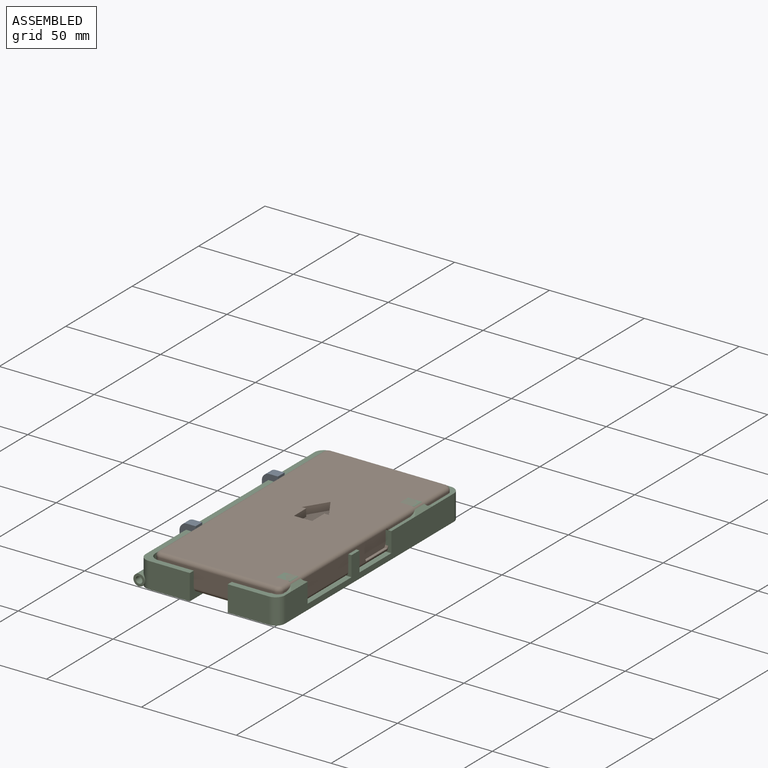
[diagram: assembled view]
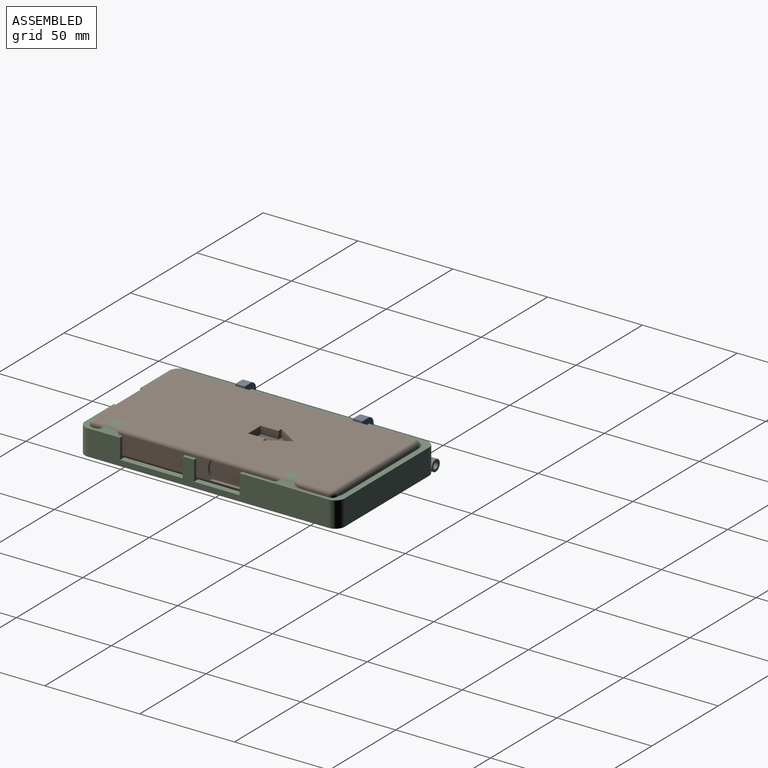
[diagram: assembled view, second angle]
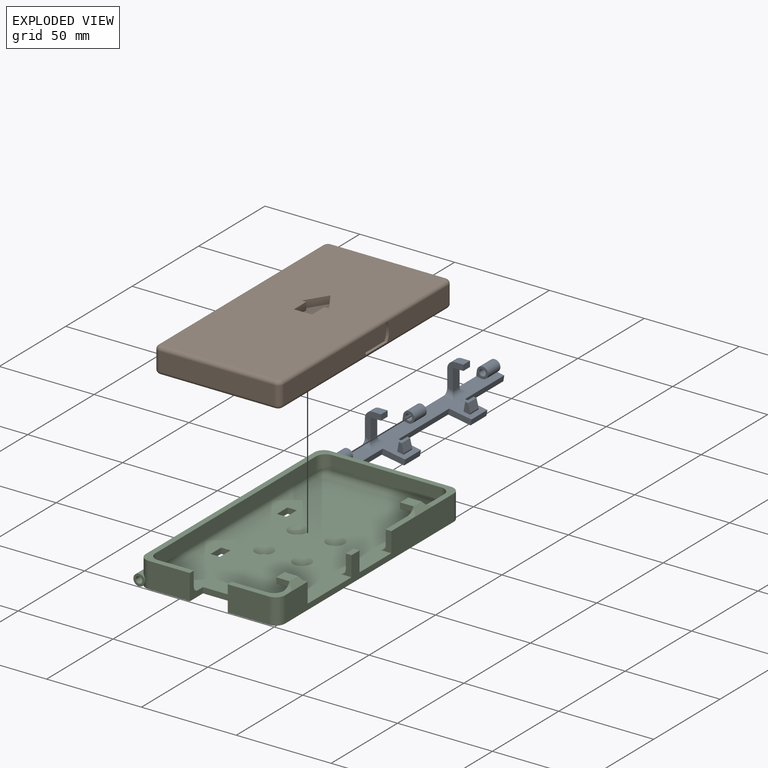
[diagram: exploded view]
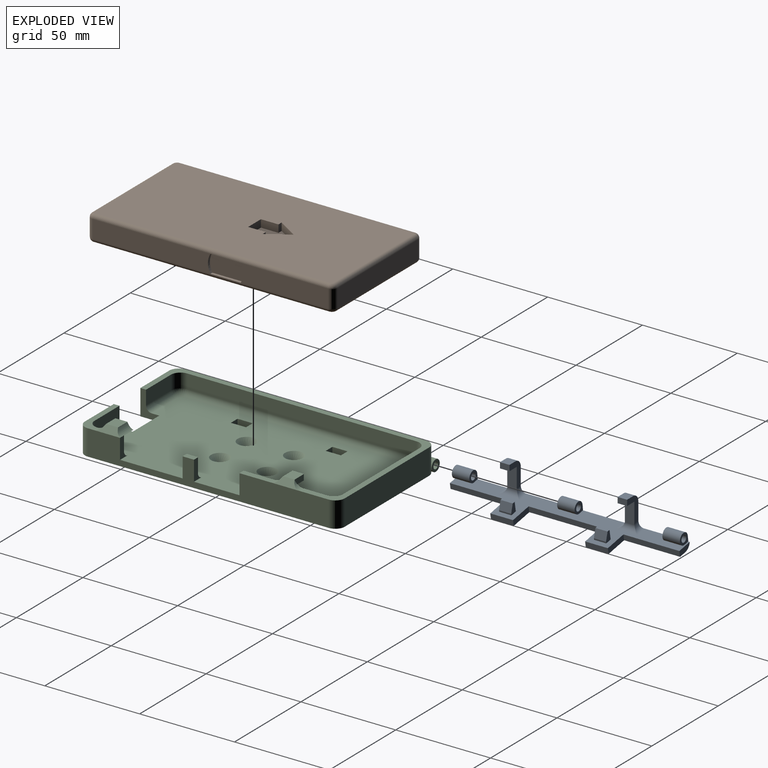
[diagram: exploded view, second angle]
ASSEMBLY  parts=3 mates=2
PART A: 62 faces, bbox 21.9x121x20.4 mm
  f0: plane 121x19.8mm, normal (0,0,1), area 998.5mm2, adj f1,f3,f4,f5,f6,f7,f8,f9
  f1: plane 5x3.4mm, normal (0,-1,0), area 13mm2, adj f0,f2,f50,f52,f53
  f2: plane 6.4x1.5mm, normal (0,0,1), area 9.6mm2, adj f1,f51,f52,f53
  f3: plane 7.9x3mm, normal (0,1,0), area 20.7mm2, adj f0,f4,f14,f29
  f4: plane 29.5x3mm, normal (1,0,0), area 88.5mm2, adj f0,f3,f5,f14
  f5: plane 11.9x3mm, normal (0,1,0), area 35.7mm2, adj f0,f4,f6,f14
  f6: plane 12x3mm, normal (1,0,0), area 36mm2, adj f0,f5,f7,f14
  f7: plane 11.9x3mm, normal (0,-1,0), area 35.7mm2, adj f0,f6,f8,f14
  f8: plane 38x3mm, normal (1,0,0), area 114mm2, adj f0,f7,f9,f14
  f9: plane 11.9x3mm, normal (0,1,0), area 35.7mm2, adj f0,f8,f10,f14
  f10: plane 12x3mm, normal (1,0,0), area 36mm2, adj f0,f9,f11,f14
  f11: plane 11.9x3mm, normal (0,-1,0), area 35.7mm2, adj f0,f10,f12,f14
  f12: plane 29.5x3mm, normal (1,0,0), area 88.5mm2, adj f0,f11,f13,f14
  f13: plane 9x8.1mm, normal (0,-1,0), area 41.1mm2, adj f0,f12,f14,f15,f16,f17,f29
  f14: plane 121x15.93mm, normal (0,0,-1), area 773.1mm2, adj f3,f4,f5,f6,f7,f8,f9,f10
  f15: cylinder r=3mm len=9.2mm, axis (0,-1,0), area 133.2mm2, adj f0,f13,f16,f18
  f16: plane 9.2x1.79mm, normal (-1,0,-0.03), area 16.5mm2, adj f13,f15,f18,f29
  f17: cylinder r=1.75mm len=9.2mm, axis (0,-1,0), area 101.2mm2, adj f13,f18
  f18: plane 6x6mm, normal (0,1,0), area 20.4mm2, adj f0,f15,f16,f17,f29
  f19: cylinder r=3mm len=9.2mm, axis (0,-1,0), area 133.2mm2, adj f0,f20,f22,f23
  f20: plane 9.2x1.79mm, normal (-1,0,-0.03), area 16.5mm2, adj f19,f22,f23,f29
  f21: cylinder r=1.75mm len=9.2mm, axis (0,-1,0), area 101.2mm2, adj f22,f23
  f22: plane 6x6mm, normal (0,1,0), area 20.4mm2, adj f0,f19,f20,f21,f29
  f23: plane 6x6mm, normal (0,-1,0), area 20.4mm2, adj f0,f19,f20,f21,f29
  f24: cylinder r=3mm len=9.2mm, axis (0,-1,0), area 133.2mm2, adj f0,f25,f27,f28
  f25: plane 9.2x1.79mm, normal (-1,0,-0.03), area 16.5mm2, adj f24,f27,f28,f29
  f26: cylinder r=1.75mm len=9.2mm, axis (0,-1,0), area 101.2mm2, adj f27,f28
  f27: plane 6x6mm, normal (0,1,0), area 20.4mm2, adj f0,f24,f25,f26,f29
  f28: plane 6x6mm, normal (0,-1,0), area 20.4mm2, adj f0,f24,f25,f26,f29
  f29: cylinder r=4mm len=121mm, axis (0,-1,0), area 662.4mm2, adj f0,f3,f13,f14,f16,f18,f20,f22
  f30: plane 5.42x5mm, normal (0.17,0,-0.98), area 27.5mm2, adj f31,f34,f35,f36
  f31: plane 5x2.95mm, normal (0.98,0,0.17), area 15mm2, adj f30,f32,f35,f36
  f32: plane 5x4.43mm, normal (-0.17,0,0.98), area 22.5mm2, adj f31,f35,f36,f61
  f33: plane 11.99x11mm, normal (-0.98,0,-0.17), area 64.8mm2, adj f0,f35,f36,f47,f48,f61
  f34: plane 11.01x5.09mm, normal (0.98,0,0.17), area 55.9mm2, adj f30,f35,f36,f47,f48,f49
  f35: plane 14.4x8.26mm, normal (0,1,0), area 53.2mm2, adj f30,f31,f32,f33,f34,f47,f61
  f36: plane 14.4x8.26mm, normal (0,-1,0), area 53.2mm2, adj f30,f31,f32,f33,f34,f48,f61
  f37: plane 5.42x5mm, normal (0.17,0,-0.98), area 27.5mm2, adj f38,f41,f42,f43
  f38: plane 11.01x5.09mm, normal (0.98,0,0.17), area 55.9mm2, adj f37,f42,f43,f44,f45,f46
  f39: plane 11.99x11mm, normal (-0.98,0,-0.17), area 64.8mm2, adj f0,f42,f43,f44,f45,f60
  f40: plane 5x4.43mm, normal (-0.17,0,0.98), area 22.5mm2, adj f41,f42,f43,f60
  f41: plane 5x2.95mm, normal (0.98,0,0.17), area 15mm2, adj f37,f40,f42,f43
  f42: plane 14.4x8.26mm, normal (0,-1,0), area 53.2mm2, adj f37,f38,f39,f40,f41,f44,f60
  f43: plane 14.4x8.26mm, normal (0,1,0), area 53.2mm2, adj f37,f38,f39,f40,f41,f45,f60
  f44: cylinder r=3mm len=6.09mm, axis (1,0,0), area 18.1mm2, adj f0,f38,f39,f42,f46
  f45: cylinder r=3mm len=6.09mm, axis (-1,0,0), area 18.1mm2, adj f0,f38,f39,f43,f46
  f46: cylinder r=3mm len=11mm, axis (0,1,0), area 31.2mm2, adj f0,f38,f44,f45
  f47: cylinder r=3mm len=6.09mm, axis (1,0,0), area 18.1mm2, adj f0,f33,f34,f35,f49
  f48: cylinder r=3mm len=6.09mm, axis (-1,0,0), area 18.1mm2, adj f0,f33,f34,f36,f49
  f49: cylinder r=3mm len=11mm, axis (0,1,0), area 31.2mm2, adj f0,f34,f47,f48
  f50: plane 6.4x0.8mm, normal (1,0,0), area 5.1mm2, adj f0,f1,f51,f53
  f51: plane 5x3.4mm, normal (0,1,0), area 13mm2, adj f0,f2,f50,f52,f53
  f52: plane 6.4x5mm, normal (-1,0,0), area 32mm2, adj f0,f1,f2,f51
  f53: plane 6.4x4.2mm, normal (0.91,0,0.41), area 29.5mm2, adj f1,f2,f50,f51
  f54: plane 6.4x0.8mm, normal (1,0,0), area 5.1mm2, adj f0,f55,f57,f59
  f55: plane 5x3.4mm, normal (0,1,0), area 13mm2, adj f0,f54,f56,f58,f59
  f56: plane 6.4x5mm, normal (-1,0,0), area 32mm2, adj f0,f55,f57,f58
  f57: plane 5x3.4mm, normal (0,-1,0), area 13mm2, adj f0,f54,f56,f58,f59
  f58: plane 6.4x1.5mm, normal (0,0,1), area 9.6mm2, adj f55,f56,f57,f59
  f59: plane 6.4x4.2mm, normal (0.91,0,0.41), area 29.5mm2, adj f54,f55,f57,f58
  f60: cylinder r=4mm len=5mm, axis (0,1,0), area 31.4mm2, adj f39,f40,f42,f43
  f61: cylinder r=4mm len=5mm, axis (0,-1,0), area 31.4mm2, adj f32,f33,f35,f36
PART B: 40 faces, bbox 66.5x130x13.5 mm
  f0: plane 62x9.5mm, normal (1,0,0), area 580.6mm2, adj f10,f14,f19,f28
  f1: plane 126x62.5mm, normal (0,0,1), area 7703.4mm2, adj f11,f12,f13,f14,f15,f18,f21,f24
  f2: plane 126x62.5mm, normal (0,0,-1), area 7874.1mm2, adj f7,f8,f9,f10,f17,f20,f23,f26
  f3: plane 124x9.5mm, normal (-1,0,0), area 1178mm2, adj f7,f11,f22,f25
  f4: plane 60.5x9.5mm, normal (0,-1,0), area 574.8mm2, adj f9,f13,f19,f22
  f5: plane 46x9.5mm, normal (1,0,0), area 428.6mm2, adj f10,f14,f16,f30
  f6: plane 60.5x9.5mm, normal (0,1,0), area 574.8mm2, adj f8,f12,f16,f25
  f7: cylinder r=2mm len=124mm, axis (0,-1,0), area 389.6mm2, adj f2,f3,f23,f26
  f8: cylinder r=2mm len=60.5mm, axis (-1,0,0), area 190.1mm2, adj f2,f6,f17,f26
  f9: cylinder r=2mm len=60.5mm, axis (1,0,0), area 190.1mm2, adj f2,f4,f20,f23
  f10: cylinder r=2mm len=124mm, axis (0,1,0), area 389.6mm2, adj f0,f2,f5,f17,f20,f29
  f11: cylinder r=2mm len=124mm, axis (0,1,0), area 389.6mm2, adj f1,f3,f21,f24
  f12: cylinder r=2mm len=60.5mm, axis (1,0,0), area 190.1mm2, adj f1,f6,f15,f24
  f13: cylinder r=2mm len=60.5mm, axis (-1,0,0), area 190.1mm2, adj f1,f4,f18,f21
  f14: cylinder r=2mm len=124mm, axis (0,-1,0), area 389.6mm2, adj f0,f1,f5,f15,f18,f27
  f15: torus R=1mm, axis (0,0,1), area 11.2mm2, adj f1,f12,f14,f16
  f16: cylinder r=3mm len=9.5mm, axis (0,0,-1), area 44.8mm2, adj f5,f6,f15,f17
  f17: torus R=1mm, axis (0,0,1), area 11.2mm2, adj f2,f8,f10,f16
  f18: torus R=1mm, axis (0,0,1), area 11.2mm2, adj f1,f13,f14,f19
  f19: cylinder r=3mm len=9.5mm, axis (0,0,1), area 44.8mm2, adj f0,f4,f18,f20
  f20: torus R=1mm, axis (0,0,1), area 11.2mm2, adj f2,f9,f10,f19
  f21: torus R=1mm, axis (0,0,1), area 11.2mm2, adj f1,f11,f13,f22
  f22: cylinder r=3mm len=9.5mm, axis (0,0,-1), area 44.8mm2, adj f3,f4,f21,f23
  f23: torus R=1mm, axis (0,0,1), area 11.2mm2, adj f2,f7,f9,f22
  f24: torus R=1mm, axis (0,0,1), area 11.2mm2, adj f1,f11,f12,f25
  f25: cylinder r=3mm len=9.5mm, axis (0,0,1), area 44.8mm2, adj f3,f6,f24,f26
  f26: torus R=1mm, axis (0,0,1), area 11.2mm2, adj f2,f7,f8,f25
  f27: plane 16x1.5mm, normal (0,0,-1), area 24mm2, adj f14,f28,f30,f31
  f28: cylinder r=9.32mm len=9.5mm, axis (1,0,0), area 15mm2, adj f0,f27,f29,f31
  f29: plane 16x1.5mm, normal (0,0,1), area 24mm2, adj f10,f28,f30,f31
  f30: cylinder r=9.32mm len=9.5mm, axis (1,0,0), area 15mm2, adj f5,f27,f29,f31
  f31: plane 18.6x9.5mm, normal (1,0,0), area 168.7mm2, adj f27,f28,f29,f30
  f32: plane 4x2.39mm, normal (0,1,0), area 9.6mm2, adj f1,f33,f38,f39
  f33: plane 9.26x4mm, normal (1,0,0), area 37.1mm2, adj f1,f32,f34,f39
  f34: plane 9.57x4mm, normal (0,1,0), area 38.3mm2, adj f1,f33,f35,f39
  f35: plane 9.26x4mm, normal (-1,0,0), area 37.1mm2, adj f1,f34,f36,f39
  f36: plane 4x2.39mm, normal (0,1,0), area 9.6mm2, adj f1,f35,f37,f39
  f37: plane 11.43x7.18mm, normal (-0.85,-0.53,0), area 54mm2, adj f1,f36,f38,f39
  f38: plane 11.43x7.18mm, normal (0.85,-0.53,0), area 54mm2, adj f1,f32,f37,f39
  f39: plane 20.69x14.36mm, normal (0,0,1), area 170.7mm2, adj f32,f33,f34,f35,f36,f37,f38
PART C: 104 faces, bbox 77.9x138.4x17.9 mm
  f0: cylinder r=3mm len=8mm, axis (0,-1,0), area 62.8mm2, adj f7,f95,f98,f100
  f1: cylinder r=1.75mm len=8mm, axis (0,-1,0), area 88mm2, adj f94,f97
  f2: cylinder r=3mm len=29.5mm, axis (0,-1,0), area 278mm2, adj f7,f23,f87,f95
  f3: cylinder r=3mm len=8mm, axis (0,-1,0), area 62.8mm2, adj f7,f88,f91,f101
  f4: cylinder r=1.75mm len=8mm, axis (0,-1,0), area 88mm2, adj f87,f90
  f5: cylinder r=3mm len=29.5mm, axis (0,-1,0), area 278mm2, adj f7,f23,f68,f88
  f6: plane 125x67.5mm, normal (0,0,1), area 7583mm2, adj f13,f16,f17,f20,f29,f30,f31,f32
  f7: plane 137x73.5mm, normal (0,0,-1), area 9730mm2, adj f0,f2,f3,f5,f8,f13,f18,f22
  f8: cylinder r=3mm len=8mm, axis (0,-1,0), area 87.8mm2, adj f7,f23,f41,f69,f73
  f9: cylinder r=1.75mm len=8mm, axis (0,-1,0), area 88mm2, adj f68,f72
  f10: plane 137x73.5mm, normal (0,0,1), area 746.1mm2, adj f13,f18,f19,f23,f24,f26,f27,f28
  f11: plane 6x3mm, normal (0,0,1), area 18mm2, adj f13,f14,f48,f50
  f12: plane 26.75x7.99mm, normal (0,0,1), area 95.2mm2, adj f13,f22,f25,f35,f42,f46,f63
  f13: plane 127x13.5mm, normal (1,0,0), area 1116mm2, adj f6,f7,f10,f11,f12,f21,f42,f43
  f14: plane 7.5x6mm, normal (-1,0,0), area 45mm2, adj f11,f16,f48,f50
  f15: plane 14x10.5mm, normal (-1,0,0), area 108.8mm2, adj f17,f35,f49,f57,f59,f63
  f16: cylinder r=3mm len=6mm, axis (0,-1,0), area 28.3mm2, adj f6,f14,f48,f50
  f17: cylinder r=3mm len=14mm, axis (0,-1,0), area 66mm2, adj f6,f15,f36,f49
  f18: plane 21.75x13.5mm, normal (0,-1,0), area 293.6mm2, adj f7,f10,f41,f47
  f19: plane 18.75x7.5mm, normal (0,1,0), area 140.6mm2, adj f10,f20,f33,f47
  f20: cylinder r=3mm len=18.75mm, axis (-1,0,0), area 88.4mm2, adj f6,f19,f34,f47
  f21: plane 16.37x3mm, normal (0,0,1), area 49.1mm2, adj f13,f26,f51,f66
  f22: plane 21.75x13.5mm, normal (0,-1,0), area 293.6mm2, adj f7,f12,f42,f46
  f23: plane 127x7.5mm, normal (-1,0,0), area 882.2mm2, adj f2,f5,f8,f10,f41,f44,f68,f71
  f24: plane 63.5x13.5mm, normal (0,1,0), area 857.3mm2, adj f7,f10,f43,f44
  f25: plane 18.75x7.5mm, normal (0,1,0), area 140.6mm2, adj f12,f32,f35,f46
  f26: plane 44x10.5mm, normal (-1,0,0), area 337.7mm2, adj f10,f21,f31,f37,f51,f52,f54,f55
  f27: plane 121x7.5mm, normal (1,0,0), area 907.5mm2, adj f10,f30,f33,f39
  f28: plane 57.5x7.5mm, normal (0,-1,0), area 431.3mm2, adj f10,f29,f37,f39
  f29: cylinder r=3mm len=57.5mm, axis (1,0,0), area 271mm2, adj f6,f28,f38,f40
  f30: cylinder r=3mm len=121mm, axis (0,1,0), area 570.2mm2, adj f6,f27,f34,f40
  f31: cylinder r=3mm len=44mm, axis (0,-1,0), area 207.3mm2, adj f6,f26,f38,f51
  f32: cylinder r=3mm len=18.75mm, axis (-1,0,0), area 88.4mm2, adj f6,f25,f36,f46
  f33: cylinder r=5mm len=7.5mm, axis (0,0,1), area 58.9mm2, adj f10,f19,f27,f34
  f34: torus R=2mm, axis (0,0,1), area 28.9mm2, adj f6,f20,f30,f33
  f35: cylinder r=5mm len=7.5mm, axis (0,0,-1), area 58.9mm2, adj f12,f15,f25,f36,f63
  f36: torus R=2mm, axis (0,0,1), area 28.9mm2, adj f6,f17,f32,f35
  f37: cylinder r=5mm len=7.5mm, axis (0,0,1), area 58.9mm2, adj f10,f26,f28,f38
  f38: torus R=2mm, axis (0,0,1), area 28.9mm2, adj f6,f29,f31,f37
  f39: cylinder r=5mm len=7.5mm, axis (0,0,-1), area 58.9mm2, adj f10,f27,f28,f40
  f40: torus R=2mm, axis (0,0,1), area 28.9mm2, adj f6,f29,f30,f39
  f41: cylinder r=5mm len=13.5mm, axis (0,0,-1), area 88.6mm2, adj f7,f8,f10,f18,f23
  f42: cylinder r=5mm len=13.5mm, axis (0,0,1), area 106mm2, adj f7,f12,f13,f22
  f43: cylinder r=5mm len=13.5mm, axis (0,0,-1), area 106mm2, adj f7,f10,f13,f24
  f44: cylinder r=5mm len=13.5mm, axis (0,0,1), area 88.6mm2, adj f7,f10,f23,f24,f93
  f45: plane 20x3mm, normal (0,-1,0), area 60mm2, adj f6,f7,f46,f47
  f46: plane 13.5x9.98mm, normal (-1,0,0), area 63.4mm2, adj f6,f7,f12,f22,f25,f32,f45
  f47: plane 13.5x9.98mm, normal (1,0,0), area 63.4mm2, adj f6,f7,f10,f18,f19,f20,f45
  f48: plane 10.5x6mm, normal (0,-1,0), area 33.4mm2, adj f6,f11,f13,f14,f16
  f49: plane 10.5x6mm, normal (0,1,0), area 33.4mm2, adj f6,f13,f15,f17,f64
  f50: plane 10.5x6mm, normal (0,1,0), area 33.4mm2, adj f6,f11,f13,f14,f16
  f51: plane 10.5x6mm, normal (0,-1,0), area 33.4mm2, adj f6,f13,f21,f26,f31
  f52: plane 7x6mm, normal (0,0,-1), area 42mm2, adj f26,f53,f54,f55
  f53: plane 6x3mm, normal (-1,0,0), area 18mm2, adj f52,f54,f55,f56
  f54: plane 7x3mm, normal (0,-1,0), area 21mm2, adj f26,f52,f53,f56
  f55: plane 7x3mm, normal (0,1,0), area 21mm2, adj f26,f52,f53,f56
  f56: plane 7x6mm, normal (0,0,1), area 42mm2, adj f53,f54,f55,f61
  f57: plane 9.43x7mm, normal (0,0,-1), area 66mm2, adj f15,f58,f59,f64
  f58: plane 9.43x3mm, normal (-1,0,0), area 22.2mm2, adj f57,f59,f60,f64
  f59: plane 7x3mm, normal (0,-1,0), area 21mm2, adj f15,f57,f58,f60
  f60: plane 7x6.32mm, normal (0,0,1), area 44.2mm2, adj f58,f59,f62,f64
  f61: plane 16.54x4.37mm, normal (0.71,0,0.71), area 36.3mm2, adj f13,f56,f65,f66
  f62: plane 14.73x3.71mm, normal (0.71,0,0.71), area 36.8mm2, adj f13,f60,f63,f64
  f63: cylinder r=5mm len=4.58mm, axis (1,0,0), area 11.3mm2, adj f12,f15,f35,f62
  f64: cylinder r=5mm len=10mm, axis (-1,0,0), area 38mm2, adj f49,f57,f58,f60,f62
  f65: cylinder r=5mm len=4.58mm, axis (1,0,0), area 8.7mm2, adj f10,f26,f61
  f66: cylinder r=5mm len=4.58mm, axis (1,0,0), area 8.7mm2, adj f21,f26,f61
  f67: cylinder r=3mm len=8mm, axis (0,-1,0), area 62.8mm2, adj f7,f68,f72,f103
  f68: plane 8.2x6mm, normal (0,1,0), area 19.4mm2, adj f5,f9,f23,f67,f103
  f69: plane 6x6mm, normal (0,-1,0), area 18.7mm2, adj f8,f70
  f70: cylinder r=1.75mm len=8mm, axis (0,-1,0), area 88mm2, adj f69,f73
  f71: cylinder r=3mm len=10mm, axis (0,-1,0), area 94.2mm2, adj f7,f23,f72,f73
  f72: plane 8.2x6mm, normal (0,-1,0), area 19.4mm2, adj f9,f23,f67,f71,f103
  f73: plane 6x6mm, normal (0,1,0), area 18.7mm2, adj f8,f70,f71
  f74: plane 5x3mm, normal (0,-1,0), area 15mm2, adj f6,f7,f75,f77
  f75: plane 8x3mm, normal (1,0,0), area 24mm2, adj f6,f7,f74,f76
  f76: plane 5x3mm, normal (0,1,0), area 15mm2, adj f6,f7,f75,f77
  f77: plane 8x3mm, normal (-1,0,0), area 24mm2, adj f6,f7,f74,f76
  f78: plane 5x3mm, normal (0,1,0), area 15mm2, adj f6,f7,f79,f80
  f79: plane 8x3mm, normal (1,0,0), area 24mm2, adj f6,f7,f78,f81
  f80: plane 8x3mm, normal (-1,0,0), area 24mm2, adj f6,f7,f78,f81
  f81: plane 5x3mm, normal (0,-1,0), area 15mm2, adj f6,f7,f79,f80
  f82: cone r=4.75mm half-angle=45deg, axis (0,0,1), area 86.6mm2, adj f6,f7
  f83: cone r=1.75mm half-angle=45deg, axis (0,0,1), area 86.6mm2, adj f6,f7
  f84: cone r=4.75mm half-angle=45deg, axis (0,0,1), area 86.6mm2, adj f6,f7
  f85: cone r=1.75mm half-angle=45deg, axis (0,0,1), area 86.6mm2, adj f6,f7
  f86: cylinder r=3mm len=8mm, axis (0,-1,0), area 62.8mm2, adj f7,f87,f90,f102
  f87: plane 8.2x6mm, normal (0,1,0), area 19.4mm2, adj f2,f4,f23,f86,f102
  f88: plane 8.2x6mm, normal (0,-1,0), area 19.4mm2, adj f3,f5,f23,f89,f101
  f89: cylinder r=1.75mm len=8mm, axis (0,-1,0), area 88mm2, adj f88,f91
  f90: plane 8.2x6mm, normal (0,-1,0), area 19.4mm2, adj f4,f23,f86,f92,f102
  f91: plane 8.2x6mm, normal (0,1,0), area 19.4mm2, adj f3,f23,f89,f92,f101
  f92: cylinder r=3mm len=10mm, axis (0,-1,0), area 94.2mm2, adj f7,f23,f90,f91
  f93: cylinder r=3mm len=8mm, axis (0,-1,0), area 87.8mm2, adj f7,f23,f44,f94,f97
  f94: plane 6x6mm, normal (0,1,0), area 18.7mm2, adj f1,f93
  f95: plane 8.2x6mm, normal (0,-1,0), area 19.4mm2, adj f0,f2,f23,f96,f100
  f96: cylinder r=1.75mm len=8mm, axis (0,-1,0), area 88mm2, adj f95,f98
  f97: plane 6x6mm, normal (0,-1,0), area 18.7mm2, adj f1,f93,f99
  f98: plane 8.2x6mm, normal (0,1,0), area 19.4mm2, adj f0,f23,f96,f99,f100
  f99: cylinder r=3mm len=10mm, axis (0,-1,0), area 94.2mm2, adj f7,f23,f97,f98
  f100: cylinder r=3mm len=8mm, axis (0,-1,0), area 25.1mm2, adj f0,f23,f95,f98
  f101: cylinder r=3mm len=8mm, axis (0,-1,0), area 25.1mm2, adj f3,f23,f88,f91
  f102: cylinder r=3mm len=8mm, axis (0,-1,0), area 25.1mm2, adj f23,f86,f87,f90
  f103: cylinder r=3mm len=8mm, axis (0,-1,0), area 25.1mm2, adj f23,f67,f68,f72
PLACE A rot(axis=(0,1,0),10deg) t=(-75.82,4.53,32.44)mm
PLACE B t=(-72.97,4.46,41.78)mm
PLACE C t=(-74.74,4.53,38.78)mm
MATE revolute C.f92 <-> A.f15  axis (0,1,0) through (-111.49,-55.97,41.78)mm
MATE planar C.f6 <-> B.f2  axis (0,0,1) through (-72.97,4.46,41.78)mm
